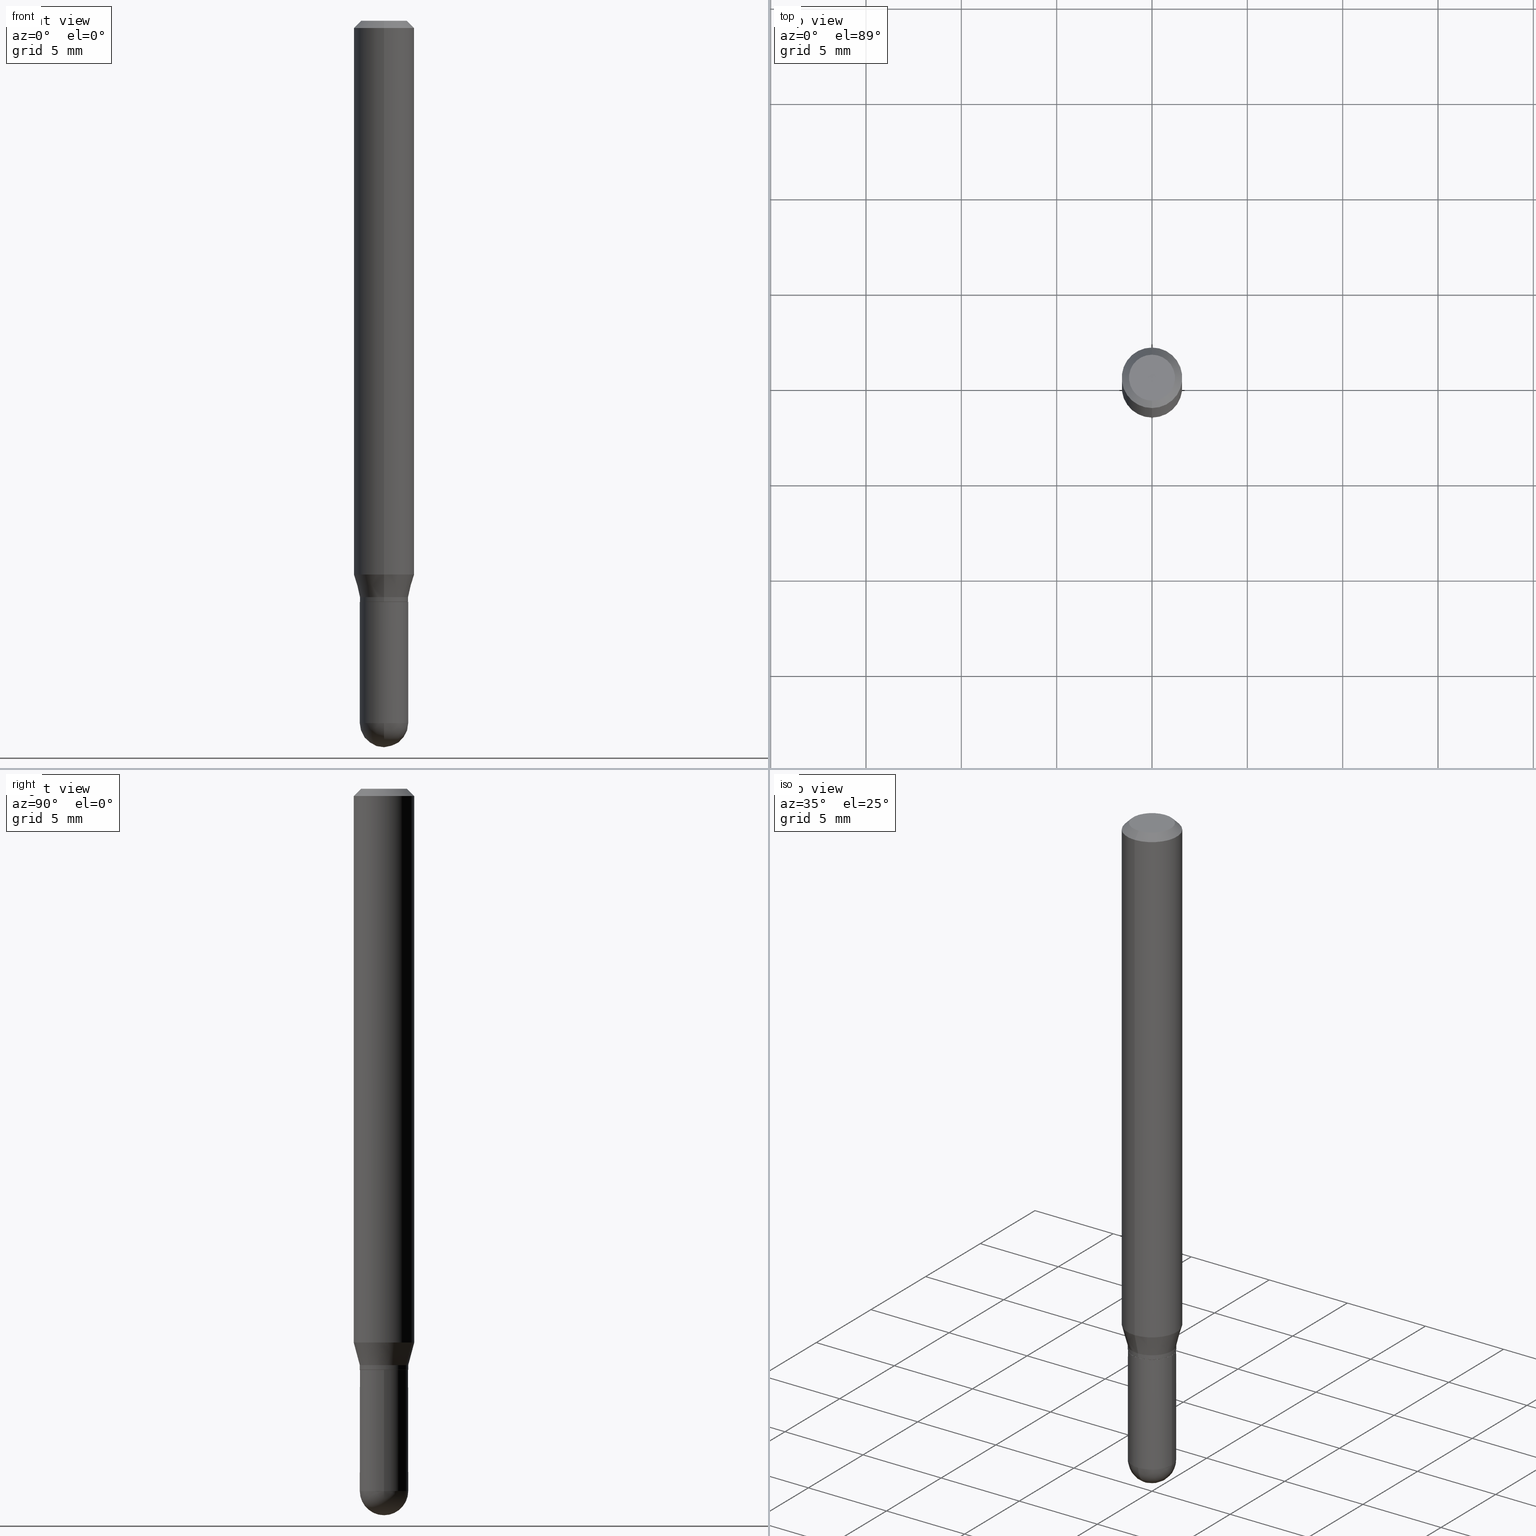
[diagram: canonical four-view strip — front | top / right | iso, engineering-drawing reading convention]
A machine part, canonical four-view strip (front | top / right | iso — engineering-drawing reading convention). The complete STEP part file that produces these views, byte-faithful:
ISO-10303-21;
HEADER;
FILE_DESCRIPTION (( 'STEP AP203' ),
    '1' );
FILE_NAME ('00876.STEP',
    '2024-03-07T18:38:46',
    ( '' ),
    ( '' ),
    'SwSTEP 2.0',
    'SolidWorks 2023',
    '' );
FILE_SCHEMA (( 'CONFIG_CONTROL_DESIGN' ));
ENDSEC;

DATA;
#1 = DIRECTION ( 'NONE',  ( -2.445468806185136597E-29, 3.491481338843145583E-15, 1.000000000000000000 ) ) ;
#2 = MANIFOLD_SOLID_BREP ( 'Body-Move/Copy2[2]', #184 ) ;
#3 = DATE_AND_TIME ( #436, #73 ) ;
#4 = DIRECTION ( 'NONE',  ( -2.445455409142924430E-29, 3.491500524170105647E-15, 1.000000000000000000 ) ) ;
#5 = AXIS2_PLACEMENT_3D ( 'NONE', #450, #388, #29 ) ;
#6 = ORIENTED_EDGE ( 'NONE', *, *, #95, .F. ) ;
#7 = LOCAL_TIME ( 13, 38, 46.00000000000000000, #8 ) ;
#8 = COORDINATED_UNIVERSAL_TIME_OFFSET ( 5, 0, .BEHIND. ) ;
#9 = DIRECTION ( 'NONE',  ( -2.445455409142924430E-29, 3.491500524170105647E-15, 1.000000000000000000 ) ) ;
#10 = DIRECTION ( 'NONE',  ( -1.807323732225328167E-15, -0.2588190451025179084, 0.9659258262890690894 ) ) ;
#11 = APPLICATION_PROTOCOL_DEFINITION ( 'international standard', 'config_control_design', 1994, #307 ) ;
#12 = CARTESIAN_POINT ( 'NONE',  ( 0.000000000000000000, 0.000000000000000000, 0.000000000000000000 ) ) ;
#13 = EDGE_CURVE ( 'NONE', #176, #294, #493, .T. ) ;
#14 = CC_DESIGN_SECURITY_CLASSIFICATION ( #244, ( #484 ) ) ;
#15 = CARTESIAN_POINT ( 'NONE',  ( 2.934546490971509876E-29, -4.189800629004127249E-15, -1.200000000000000178 ) ) ;
#16 = PRODUCT_RELATED_PRODUCT_CATEGORY ( 'detail', '', ( #122 ) ) ;
#17 = DIRECTION ( 'NONE',  ( -2.445468806185136597E-29, 3.491481338843145583E-15, 1.000000000000000000 ) ) ;
#18 = ORIENTED_EDGE ( 'NONE', *, *, #438, .F. ) ;
#19 = CARTESIAN_POINT ( 'NONE',  ( 3.552713678800795963E-16, 0.04999999999999590883, -1.190000000000000391 ) ) ;
#20 = ORIENTED_EDGE ( 'NONE', *, *, #394, .F. ) ;
#21 = DIMENSIONAL_EXPONENTS ( 1.000000000000000000, 0.000000000000000000, 0.000000000000000000, 0.000000000000000000, 0.000000000000000000, 0.000000000000000000, 0.000000000000000000 ) ;
#22 = AXIS2_PLACEMENT_3D ( 'NONE', #325, #504, #335 ) ;
#23 = CIRCLE ( 'NONE', #323, 0.05000000000000006523 ) ;
#24 = CARTESIAN_POINT ( 'NONE',  ( -3.491481338843137300E-16, -0.05000000000000006523, 1.745750262085054993E-16 ) ) ;
#25 = ORIENTED_EDGE ( 'NONE', *, *, #311, .F. ) ;
#26 = PRODUCT_DEFINITION ( 'UNKNOWN', '', #484, #265 ) ;
#27 = DIRECTION ( 'NONE',  ( -2.445455409142924430E-29, 3.491500524170105647E-15, 1.000000000000000000 ) ) ;
#28 = ORIENTED_EDGE ( 'NONE', *, *, #396, .T. ) ;
#29 = DIRECTION ( 'NONE',  ( -6.982962677686265922E-15, -1.000000000000000000, 4.370956789862821150E-15 ) ) ;
#30 = ORIENTED_EDGE ( 'NONE', *, *, #263, .F. ) ;
#31 = VECTOR ( 'NONE', #410, 39.37007874015748143 ) ;
#32 = DIRECTION ( 'NONE',  ( -1.000000000000000000, 6.982962677686265133E-15, -4.883557194083112340E-29 ) ) ;
#33 = CARTESIAN_POINT ( 'NONE',  ( -3.456566525454408447E-16, -0.04950000000000419342, -1.199999999999999956 ) ) ;
#34 = DIRECTION ( 'NONE',  ( 6.982962677686266711E-15, 1.000000000000000000, 0.000000000000000000 ) ) ;
#35 = DIRECTION ( 'NONE',  ( -7.105427357601001070E-15, -1.000000000000000000, 0.000000000000000000 ) ) ;
#36 = FACE_OUTER_BOUND ( 'NONE', #349, .T. ) ;
#37 = EDGE_CURVE ( 'NONE', #239, #284, #242, .T. ) ;
#38 = AXIS2_PLACEMENT_3D ( 'NONE', #502, #113, #469 ) ;
#39 = ORIENTED_EDGE ( 'NONE', *, *, #487, .T. ) ;
#40 = PERSON_AND_ORGANIZATION ( #258, #253 ) ;
#41 = DIRECTION ( 'NONE',  ( -6.982962677686266711E-15, -1.000000000000000000, 3.491500524170106041E-15 ) ) ;
#42 = LENGTH_MEASURE_WITH_UNIT ( LENGTH_MEASURE( 0.02539999999999999897 ), #443 );
#43 = DIRECTION ( 'NONE',  ( -1.000000000000000000, 6.982962677686265922E-15, -4.876176775795935793E-29 ) ) ;
#44 = ADVANCED_FACE ( 'NONE', ( #123 ), #120, .T. ) ;
#45 =( NAMED_UNIT ( * ) PLANE_ANGLE_UNIT ( ) SI_UNIT ( $, .RADIAN. ) );
#46 = FACE_OUTER_BOUND ( 'NONE', #220, .T. ) ;
#47 = VECTOR ( 'NONE', #350, 39.37007874015748854 ) ;
#48 = AXIS2_PLACEMENT_3D ( 'NONE', #50, #447, #247 ) ;
#49 = VECTOR ( 'NONE', #392, 39.37007874015748143 ) ;
#50 = CARTESIAN_POINT ( 'NONE',  ( 0.000000000000000000, 0.000000000000000000, 0.000000000000000000 ) ) ;
#51 = CARTESIAN_POINT ( 'NONE',  ( 3.491481338843426713E-16, 0.04999999999999581168, -1.200000000000000400 ) ) ;
#52 = PERSON_AND_ORGANIZATION ( #258, #253 ) ;
#53 = DIRECTION ( 'NONE',  ( -1.000000000000000000, 6.982962677686265133E-15, -4.883557194083112340E-29 ) ) ;
#54 = DIRECTION ( 'NONE',  ( -2.445455409142924430E-29, 3.491500524170105647E-15, 1.000000000000000000 ) ) ;
#55 = VECTOR ( 'NONE', #498, 39.37007874015748143 ) ;
#56 = APPROVAL_PERSON_ORGANIZATION ( #411, #276, #285 ) ;
#57 = LINE ( 'NONE', #19, #47 ) ;
#58 = ORIENTED_EDGE ( 'NONE', *, *, #510, .F. ) ;
#59 = ORIENTED_EDGE ( 'NONE', *, *, #146, .T. ) ;
#60 = ADVANCED_FACE ( 'NONE', ( #286 ), #437, .T. ) ;
#61 = CARTESIAN_POINT ( 'NONE',  ( 2.910091936880080548E-29, -4.154885623762426287E-15, -1.190000000000000169 ) ) ;
#62 = CC_DESIGN_PERSON_AND_ORGANIZATION_ASSIGNMENT ( #245, #399, ( #484 ) ) ;
#63 = EDGE_LOOP ( 'NONE', ( #130, #434, #6, #465 ) ) ;
#64 = AXIS2_PLACEMENT_3D ( 'NONE', #231, #472, #35 ) ;
#65 = CIRCLE ( 'NONE', #406, 0.04950000000000000233 ) ;
#66 = DIRECTION ( 'NONE',  ( -2.445455409142924430E-29, 3.491500524170105647E-15, 1.000000000000000000 ) ) ;
#67 = ORIENTED_EDGE ( 'NONE', *, *, #82, .F. ) ;
#68 = EDGE_LOOP ( 'NONE', ( #145, #236 ) ) ;
#69 = LINE ( 'NONE', #152, #446 ) ;
#70 = ORIENTED_EDGE ( 'NONE', *, *, #104, .F. ) ;
#71 = EDGE_CURVE ( 'NONE', #190, #326, #393, .T. ) ;
#72 = CIRCLE ( 'NONE', #338, 0.06250000000000000000 ) ;
#73 = LOCAL_TIME ( 13, 38, 46.00000000000000000, #160 ) ;
#74 = DIRECTION ( 'NONE',  ( -2.445468806185136877E-29, 3.491481338843145188E-15, 1.000000000000000000 ) ) ;
#75 = CLOSED_SHELL ( 'NONE', ( #195, #259, #266, #429, #378 ) ) ;
#76 = CARTESIAN_POINT ( 'NONE',  ( 2.166528792165285083E-46, -3.093262868418392808E-32, -8.859408288800502877E-18 ) ) ;
#77 = ORIENTED_EDGE ( 'NONE', *, *, #82, .T. ) ;
#78 = EDGE_CURVE ( 'NONE', #109, #176, #86, .T. ) ;
#79 = ORIENTED_EDGE ( 'NONE', *, *, #131, .F. ) ;
#80 = CARTESIAN_POINT ( 'NONE',  ( -3.491481338842846900E-16, -0.05000000000000429101, -1.199500000000000011 ) ) ;
#81 = EDGE_LOOP ( 'NONE', ( #306, #458, #121, #18 ) ) ;
#82 = EDGE_CURVE ( 'NONE', #403, #176, #353, .T. ) ;
#83 = VERTEX_POINT ( 'NONE', #33 ) ;
#84 = DATE_AND_TIME ( #250, #468 ) ;
#85 = AXIS2_PLACEMENT_3D ( 'NONE', #168, #486, #211 ) ;
#86 = LINE ( 'NONE', #463, #278 ) ;
#87 = LINE ( 'NONE', #89, #162 ) ;
#88 = PERSON_AND_ORGANIZATION_ROLE ( 'design_owner' ) ;
#89 = CARTESIAN_POINT ( 'NONE',  ( -3.491481338842845914E-16, -0.05000000000000422162, -1.189999999999999947 ) ) ;
#90 = DIRECTION ( 'NONE',  ( -2.445455409142924430E-29, 3.491500524170105647E-15, 1.000000000000000000 ) ) ;
#91 = VECTOR ( 'NONE', #180, 39.37007874015748143 ) ;
#92 = EDGE_CURVE ( 'NONE', #451, #284, #308, .T. ) ;
#93 = CARTESIAN_POINT ( 'NONE',  ( 3.541653937522551347E-29, -5.068771175318297793E-15, -1.450000000000000178 ) ) ;
#94 = DIRECTION ( 'NONE',  ( -2.445455409142924430E-29, 3.491500524170105647E-15, 1.000000000000000000 ) ) ;
#95 = EDGE_CURVE ( 'NONE', #422, #186, #302, .T. ) ;
#96 = SPHERICAL_SURFACE ( 'NONE', #164, 0.05000000000000000971 ) ;
#97 = CIRCLE ( 'NONE', #390, 0.04999999999999999584 ) ;
#98 = ORIENTED_EDGE ( 'NONE', *, *, #13, .F. ) ;
#99 = AXIS2_PLACEMENT_3D ( 'NONE', #222, #452, #261 ) ;
#100 = CALENDAR_DATE ( 2024, 7, 3 ) ;
#101 = CARTESIAN_POINT ( 'NONE',  ( -3.456566525454408447E-16, -0.04950000000000419342, -1.199999999999999956 ) ) ;
#102 = ORIENTED_EDGE ( 'NONE', *, *, #396, .F. ) ;
#103 = ADVANCED_FACE ( 'NONE', ( #357 ), #381, .T. ) ;
#104 = EDGE_CURVE ( 'NONE', #386, #109, #407, .T. ) ;
#105 = DIRECTION ( 'NONE',  ( -6.982962677686265133E-15, -1.000000000000000000, 2.731847993664259669E-15 ) ) ;
#106 = ORIENTED_EDGE ( 'NONE', *, *, #214, .T. ) ;
#107 = PERSON_AND_ORGANIZATION ( #258, #253 ) ;
#108 = FACE_OUTER_BOUND ( 'NONE', #369, .T. ) ;
#109 = VERTEX_POINT ( 'NONE', #467 ) ;
#110 = CONICAL_SURFACE ( 'NONE', #483, 0.06250000000000000000, 0.7853981633974483900 ) ;
#111 = PLANE ( 'NONE',  #225 ) ;
#112 = ORIENTED_EDGE ( 'NONE', *, *, #352, .T. ) ;
#113 = DIRECTION ( 'NONE',  ( -2.445455409142924430E-29, 3.491500524170105647E-15, 1.000000000000000000 ) ) ;
#114 = DIRECTION ( 'NONE',  ( 4.937700262164548042E-15, 0.7071067811865451302, -0.7071067811865499042 ) ) ;
#115 = DIRECTION ( 'NONE',  ( -2.445455409142924430E-29, 3.491500524170106041E-15, 1.000000000000000000 ) ) ;
#116 = APPROVAL_PERSON_ORGANIZATION ( #128, #312, #441 ) ;
#117 = VECTOR ( 'NONE', #115, 39.37007874015748143 ) ;
#118 = ORIENTED_EDGE ( 'NONE', *, *, #333, .T. ) ;
#119 = ADVANCED_FACE ( 'NONE', ( #36 ), #509, .T. ) ;
#120 = CYLINDRICAL_SURFACE ( 'NONE', #466, 0.05000000000000006523 ) ;
#121 = ORIENTED_EDGE ( 'NONE', *, *, #131, .T. ) ;
#122 = PRODUCT ( '00876', '00876', '', ( #206 ) ) ;
#123 = FACE_OUTER_BOUND ( 'NONE', #389, .T. ) ;
#124 = DIRECTION ( 'NONE',  ( -2.445468806185136597E-29, 3.491481338843145583E-15, 1.000000000000000000 ) ) ;
#125 = FACE_OUTER_BOUND ( 'NONE', #384, .T. ) ;
#126 =( CONVERSION_BASED_UNIT ( 'INCH', #42 ) LENGTH_UNIT ( ) NAMED_UNIT ( #21 ) );
#127 = DIRECTION ( 'NONE',  ( -6.982962677686265922E-15, -1.000000000000000000, 3.483106191921935554E-15 ) ) ;
#128 = PERSON_AND_ORGANIZATION ( #258, #253 ) ;
#129 = CARTESIAN_POINT ( 'NONE',  ( -0.04999999999999999584, 3.552713678800500634E-16, -2.459467545127452961E-30 ) ) ;
#130 = ORIENTED_EDGE ( 'NONE', *, *, #37, .F. ) ;
#131 = EDGE_CURVE ( 'NONE', #495, #273, #87, .T. ) ;
#132 = CARTESIAN_POINT ( 'NONE',  ( 3.668183113714388746E-31, -5.237250786255162143E-17, -0.01500000000000000812 ) ) ;
#133 = CONICAL_SURFACE ( 'NONE', #38, 0.04950000000000000233, 0.7853981633974739252 ) ;
#134 = APPROVAL_PERSON_ORGANIZATION ( #107, #418, #221 ) ;
#135 = CC_DESIGN_DATE_AND_TIME_ASSIGNMENT ( #327, #372, ( #26 ) ) ;
#136 = DIRECTION ( 'NONE',  ( -6.982962677686265922E-15, -1.000000000000000000, 3.491500524170105647E-15 ) ) ;
#137 = COORDINATED_UNIVERSAL_TIME_OFFSET ( 5, 0, .BEHIND. ) ;
#138 = CARTESIAN_POINT ( 'NONE',  ( -3.773273898774340269E-16, -0.04749999999999999362, 1.569868666092795110E-16 ) ) ;
#139 = ORIENTED_EDGE ( 'NONE', *, *, #371, .F. ) ;
#140 = ORIENTED_EDGE ( 'NONE', *, *, #371, .T. ) ;
#141 = AXIS2_PLACEMENT_3D ( 'NONE', #51, #337, #43 ) ;
#142 = DIRECTION ( 'NONE',  ( -6.982962677686265133E-15, -1.000000000000000000, 2.731847993664259669E-15 ) ) ;
#143 = EDGE_LOOP ( 'NONE', ( #139, #106, #362, #25 ) ) ;
#144 = CARTESIAN_POINT ( 'NONE',  ( 3.517186542012788950E-16, 0.04949999999999581124, -1.200000000000000400 ) ) ;
#145 = ORIENTED_EDGE ( 'NONE', *, *, #471, .T. ) ;
#146 = EDGE_CURVE ( 'NONE', #284, #422, #97, .T. ) ;
#147 = CARTESIAN_POINT ( 'NONE',  ( 4.440892098500904235E-16, 0.06249999999999599626, -1.143349364905389853 ) ) ;
#148 = ORIENTED_EDGE ( 'NONE', *, *, #240, .T. ) ;
#149 = CC_DESIGN_APPROVAL ( #418, ( #244 ) ) ;
#150 = LOCAL_TIME ( 13, 38, 46.00000000000000000, #137 ) ;
#151 = ORIENTED_EDGE ( 'NONE', *, *, #78, .T. ) ;
#152 = CARTESIAN_POINT ( 'NONE',  ( 0.04999999999999999584, -3.491481338843132862E-16, 2.438088387897967896E-30 ) ) ;
#153 = CARTESIAN_POINT ( 'NONE',  ( 0.000000000000000000, 0.000000000000000000, 0.000000000000000000 ) ) ;
#154 = ORIENTED_EDGE ( 'NONE', *, *, #387, .F. ) ;
#155 = CC_DESIGN_PERSON_AND_ORGANIZATION_ASSIGNMENT ( #52, #364, ( #26 ) ) ;
#156 = CONICAL_SURFACE ( 'NONE', #295, 0.05000000000000006523, 0.2617993877991499629 ) ;
#157 = ORIENTED_EDGE ( 'NONE', *, *, #487, .F. ) ;
#158 = DIRECTION ( 'NONE',  ( 6.982962677686265922E-15, 1.000000000000000000, -3.483106191921935554E-15 ) ) ;
#159 = DIRECTION ( 'NONE',  ( -6.982962677686265922E-15, -1.000000000000000000, 3.483106191921935554E-15 ) ) ;
#160 = COORDINATED_UNIVERSAL_TIME_OFFSET ( 5, 0, .BEHIND. ) ;
#161 = DIRECTION ( 'NONE',  ( 6.982962677686265133E-15, 1.000000000000000000, -5.463695987328524859E-15 ) ) ;
#162 = VECTOR ( 'NONE', #10, 39.37007874015748143 ) ;
#163 = APPROVAL_DATE_TIME ( #84, #312 ) ;
#164 = AXIS2_PLACEMENT_3D ( 'NONE', #229, #32, #192 ) ;
#165 = DIRECTION ( 'NONE',  ( -6.982962677686265922E-15, -1.000000000000000000, 4.370956789862821150E-15 ) ) ;
#166 = EDGE_LOOP ( 'NONE', ( #287, #341 ) ) ;
#167 = CALENDAR_DATE ( 2024, 7, 3 ) ;
#168 = CARTESIAN_POINT ( 'NONE',  ( 3.316907271900976096E-16, 0.04749999999999999362, -1.702759790424802506E-16 ) ) ;
#169 = CALENDAR_DATE ( 2024, 7, 3 ) ;
#170 = CARTESIAN_POINT ( 'NONE',  ( 3.668183113714388746E-31, -5.237250786255162143E-17, -0.01500000000000000812 ) ) ;
#171 = APPROVAL_STATUS ( 'not_yet_approved' ) ;
#172 = AXIS2_PLACEMENT_3D ( 'NONE', #503, #512, #159 ) ;
#173 = DIRECTION ( 'NONE',  ( 1.000000000000000000, -6.982962677686274599E-15, 0.000000000000000000 ) ) ;
#174 = AXIS2_PLACEMENT_3D ( 'NONE', #12, #90, #136 ) ;
#175 = CARTESIAN_POINT ( 'NONE',  ( 0.04999999999999999584, -4.975360907851482386E-15, -1.450000000000000178 ) ) ;
#176 = VERTEX_POINT ( 'NONE', #299 ) ;
#177 = DATE_AND_TIME ( #100, #150 ) ;
#178 = DIRECTION ( 'NONE',  ( 1.000000000000000000, -6.982962677686265922E-15, 4.876176775795936353E-29 ) ) ;
#179 = ORIENTED_EDGE ( 'NONE', *, *, #333, .F. ) ;
#180 = DIRECTION ( 'NONE',  ( -2.445455409142924430E-29, 3.491500524170106041E-15, 1.000000000000000000 ) ) ;
#181 = EDGE_LOOP ( 'NONE', ( #30, #249, #151, #301 ) ) ;
#182 = CIRCLE ( 'NONE', #374, 0.05000000000000000971 ) ;
#183 = AXIS2_PLACEMENT_3D ( 'NONE', #476, #124, #485 ) ;
#184 = CLOSED_SHELL ( 'NONE', ( #44, #456, #292, #235, #491, #409, #60, #505, #203, #363, #103, #119 ) ) ;
#185 = CARTESIAN_POINT ( 'NONE',  ( -4.364351673553916201E-16, -0.06250000000000000000, 2.182187827606316029E-16 ) ) ;
#186 = VERTEX_POINT ( 'NONE', #293 ) ;
#187 = EDGE_CURVE ( 'NONE', #227, #310, #482, .T. ) ;
#188 = DIRECTION ( 'NONE',  ( -6.982962677686265133E-15, -1.000000000000000000, 2.731847993664259669E-15 ) ) ;
#189 = ORIENTED_EDGE ( 'NONE', *, *, #37, .T. ) ;
#190 = VERTEX_POINT ( 'NONE', #412 ) ;
#191 = VECTOR ( 'NONE', #339, 39.37007874015748143 ) ;
#192 = DIRECTION ( 'NONE',  ( 6.982962677686265133E-15, 1.000000000000000000, -5.463695987328524859E-15 ) ) ;
#193 = DIRECTION ( 'NONE',  ( -2.445468806185136597E-29, 3.491481338843145583E-15, 1.000000000000000000 ) ) ;
#194 = FACE_OUTER_BOUND ( 'NONE', #181, .T. ) ;
#195 = ADVANCED_FACE ( 'NONE', ( #46 ), #370, .T. ) ;
#196 = DIRECTION ( 'NONE',  ( 1.000000000000000000, -6.982962677686275388E-15, 0.000000000000000000 ) ) ;
#197 = CC_DESIGN_PERSON_AND_ORGANIZATION_ASSIGNMENT ( #404, #209, ( #484 ) ) ;
#198 = CARTESIAN_POINT ( 'NONE',  ( 3.545929768968448850E-29, -5.062647941322561509E-15, -1.450000000000000178 ) ) ;
#199 = AXIS2_PLACEMENT_3D ( 'NONE', #234, #201, #511 ) ;
#200 = CC_DESIGN_APPROVAL ( #312, ( #484 ) ) ;
#201 = DIRECTION ( 'NONE',  ( -2.445455409142924430E-29, 3.491500524170105647E-15, 1.000000000000000000 ) ) ;
#202 = ORIENTED_EDGE ( 'NONE', *, *, #223, .F. ) ;
#203 = ADVANCED_FACE ( 'NONE', ( #332 ), #208, .F. ) ;
#204 = PERSON_AND_ORGANIZATION_ROLE ( 'classification_officer' ) ;
#205 = DIRECTION ( 'NONE',  ( 1.000000000000000000, -6.982962677686265922E-15, 4.876176775795936353E-29 ) ) ;
#206 = MECHANICAL_CONTEXT ( 'NONE', #307, 'mechanical' ) ;
#207 = CC_DESIGN_PERSON_AND_ORGANIZATION_ASSIGNMENT ( #255, #88, ( #122 ) ) ;
#208 = PLANE ( 'NONE',  #85 ) ;
#209 = PERSON_AND_ORGANIZATION_ROLE ( 'design_supplier' ) ;
#210 = AXIS2_PLACEMENT_3D ( 'NONE', #170, #94, #127 ) ;
#211 = DIRECTION ( 'NONE',  ( 6.982962677686265922E-15, 1.000000000000000000, -3.491500524170106041E-15 ) ) ;
#212 = APPROVAL_DATE_TIME ( #3, #276 ) ;
#213 = DIRECTION ( 'NONE',  ( -2.445468806185136597E-29, 3.491481338843145583E-15, 1.000000000000000000 ) ) ;
#214 = EDGE_CURVE ( 'NONE', #314, #83, #243, .T. ) ;
#215 = CC_DESIGN_PERSON_AND_ORGANIZATION_ASSIGNMENT ( #40, #204, ( #244 ) ) ;
#216 = CARTESIAN_POINT ( 'NONE',  ( 2.796009888948012250E-29, -3.992004906876724635E-15, -1.143349364905389409 ) ) ;
#217 = DIRECTION ( 'NONE',  ( -6.982962677686265922E-15, -1.000000000000000000, 2.759442417842689940E-15 ) ) ;
#218 =( GEOMETRIC_REPRESENTATION_CONTEXT ( 3 ) GLOBAL_UNCERTAINTY_ASSIGNED_CONTEXT ( ( #380 ) ) GLOBAL_UNIT_ASSIGNED_CONTEXT ( ( #126, #45, #408 ) ) REPRESENTATION_CONTEXT ( 'NONE', 'WORKASPACE' ) );
#219 = DIRECTION ( 'NONE',  ( -6.982962677686265922E-15, -1.000000000000000000, 3.491500524170106041E-15 ) ) ;
#220 = EDGE_LOOP ( 'NONE', ( #291, #427, #283, #157, #461 ) ) ;
#221 = APPROVAL_ROLE ( '' ) ;
#222 = CARTESIAN_POINT ( 'NONE',  ( 2.910091936880080548E-29, -4.154885623762426287E-15, -1.190000000000000169 ) ) ;
#223 = EDGE_CURVE ( 'NONE', #451, #310, #442, .T. ) ;
#224 = ORIENTED_EDGE ( 'NONE', *, *, #263, .T. ) ;
#225 = AXIS2_PLACEMENT_3D ( 'NONE', #15, #494, #219 ) ;
#226 = CARTESIAN_POINT ( 'NONE',  ( 2.933323763266938746E-29, -4.188054878742041965E-15, -1.199500000000000233 ) ) ;
#227 = VERTEX_POINT ( 'NONE', #257 ) ;
#228 = EDGE_CURVE ( 'NONE', #273, #403, #72, .T. ) ;
#229 = CARTESIAN_POINT ( 'NONE',  ( 3.541653937522551347E-29, -5.068771175318297793E-15, -1.450000000000000178 ) ) ;
#230 = ORIENTED_EDGE ( 'NONE', *, *, #233, .F. ) ;
#231 = CARTESIAN_POINT ( 'NONE',  ( 3.541653937522551347E-29, -5.068771175318297793E-15, -1.450000000000000178 ) ) ;
#232 = AXIS2_PLACEMENT_3D ( 'NONE', #376, #17, #178 ) ;
#233 = EDGE_CURVE ( 'NONE', #310, #227, #414, .T. ) ;
#234 = CARTESIAN_POINT ( 'NONE',  ( 2.910091936880080548E-29, -4.154885623762426287E-15, -1.190000000000000169 ) ) ;
#235 = ADVANCED_FACE ( 'NONE', ( #125 ), #373, .T. ) ;
#236 = ORIENTED_EDGE ( 'NONE', *, *, #104, .T. ) ;
#237 = CARTESIAN_POINT ( 'NONE',  ( 0.000000000000000000, 0.000000000000000000, 0.000000000000000000 ) ) ;
#238 = CARTESIAN_POINT ( 'NONE',  ( 2.166528792165285083E-46, -3.093262868418392808E-32, -8.859408288800502877E-18 ) ) ;
#239 = VERTEX_POINT ( 'NONE', #449 ) ;
#240 = EDGE_CURVE ( 'NONE', #294, #176, #500, .T. ) ;
#241 = ORIENTED_EDGE ( 'NONE', *, *, #92, .F. ) ;
#242 = CIRCLE ( 'NONE', #64, 0.05000000000000000971 ) ;
#243 = CIRCLE ( 'NONE', #391, 0.04950000000000000233 ) ;
#244 = SECURITY_CLASSIFICATION ( '', '', #367 ) ;
#245 = PERSON_AND_ORGANIZATION ( #258, #253 ) ;
#246 = DIRECTION ( 'NONE',  ( -2.445468806185136597E-29, 3.491481338843145583E-15, 1.000000000000000000 ) ) ;
#247 = DIRECTION ( 'NONE',  ( 1.000000000000000000, 0.000000000000000000, 0.000000000000000000 ) ) ;
#248 = PLANE ( 'NONE',  #141 ) ;
#249 = ORIENTED_EDGE ( 'NONE', *, *, #471, .F. ) ;
#250 = CALENDAR_DATE ( 2024, 7, 3 ) ;
#251 = CARTESIAN_POINT ( 'NONE',  ( 3.545929768968448850E-29, -5.062647941322561509E-15, -1.450000000000000178 ) ) ;
#252 = AXIS2_PLACEMENT_3D ( 'NONE', #405, #328, #205 ) ;
#253 = ORGANIZATION ( 'UNSPECIFIED', 'UNSPECIFIED', '' ) ;
#254 = CARTESIAN_POINT ( 'NONE',  ( 2.934562567422164701E-29, -4.189777606611775804E-15, -1.200000000000000178 ) ) ;
#255 = PERSON_AND_ORGANIZATION ( #258, #253 ) ;
#256 = DIRECTION ( 'NONE',  ( -2.445468806185136597E-29, 3.491481338843145583E-15, 1.000000000000000000 ) ) ;
#257 = CARTESIAN_POINT ( 'NONE',  ( 0.05000000000000000278, -4.538925740496089139E-15, -1.200000000000000178 ) ) ;
#258 = PERSON ( 'UNSPECIFIED', 'UNSPECIFIED', 'UNSPECIFIED', ('UNSPECIFIED'), ('UNSPECIFIED'), ('UNSPECIFIED') ) ;
#259 = ADVANCED_FACE ( 'NONE', ( #413 ), #444, .T. ) ;
#260 = CIRCLE ( 'NONE', #271, 0.05000000000000006523 ) ;
#261 = DIRECTION ( 'NONE',  ( -6.982962677686265133E-15, -1.000000000000000000, 2.731847993664259669E-15 ) ) ;
#262 = EDGE_LOOP ( 'NONE', ( #453, #140, #377, #20 ) ) ;
#263 = EDGE_CURVE ( 'NONE', #386, #294, #474, .T. ) ;
#264 = ORIENTED_EDGE ( 'NONE', *, *, #71, .F. ) ;
#265 = DESIGN_CONTEXT ( 'detailed design', #297, 'design' ) ;
#266 = ADVANCED_FACE ( 'NONE', ( #440 ), #248, .F. ) ;
#267 = CARTESIAN_POINT ( 'NONE',  ( 2.933323763266938746E-29, -4.188054878742041965E-15, -1.199500000000000233 ) ) ;
#268 = EDGE_LOOP ( 'NONE', ( #67, #455, #118, #98 ) ) ;
#269 = APPROVAL_STATUS ( 'not_yet_approved' ) ;
#270 = DIRECTION ( 'NONE',  ( -2.445455409142924430E-29, 3.491500524170106041E-15, 1.000000000000000000 ) ) ;
#271 = AXIS2_PLACEMENT_3D ( 'NONE', #267, #457, #188 ) ;
#272 = CARTESIAN_POINT ( 'NONE',  ( 2.910091936880080548E-29, -4.154885623762426287E-15, -1.190000000000000169 ) ) ;
#273 = VERTEX_POINT ( 'NONE', #365 ) ;
#274 = DIRECTION ( 'NONE',  ( -2.445455409142924430E-29, 3.491500524170105647E-15, 1.000000000000000000 ) ) ;
#275 = CARTESIAN_POINT ( 'NONE',  ( 4.440892098500625669E-16, 0.06250000000000000000, -2.182187827606316029E-16 ) ) ;
#276 = APPROVAL ( #331, 'UNSPECIFIED' ) ;
#277 = DIRECTION ( 'NONE',  ( -6.982962677686265922E-15, -1.000000000000000000, 2.759442417842689940E-15 ) ) ;
#278 = VECTOR ( 'NONE', #114, 39.37007874015748143 ) ;
#279 = CIRCLE ( 'NONE', #5, 0.06250000000000000000 ) ;
#280 = AXIS2_PLACEMENT_3D ( 'NONE', #153, #322, #395 ) ;
#281 = ORIENTED_EDGE ( 'NONE', *, *, #78, .F. ) ;
#282 = DIRECTION ( 'NONE',  ( 1.000000000000000000, -6.982962677686265922E-15, 4.883557194083112340E-29 ) ) ;
#283 = ORIENTED_EDGE ( 'NONE', *, *, #187, .F. ) ;
#284 = VERTEX_POINT ( 'NONE', #290 ) ;
#285 = APPROVAL_ROLE ( '' ) ;
#286 = FACE_OUTER_BOUND ( 'NONE', #268, .T. ) ;
#287 = ORIENTED_EDGE ( 'NONE', *, *, #187, .T. ) ;
#288 = CIRCLE ( 'NONE', #382, 0.05000000000000006523 ) ;
#289 = CARTESIAN_POINT ( 'NONE',  ( -4.287811248607203282E-16, -0.06250000000000005551, -0.01499999999999979128 ) ) ;
#290 = CARTESIAN_POINT ( 'NONE',  ( -3.552713678800146632E-16, -0.05000000000000506817, -1.449999999999999734 ) ) ;
#291 = ORIENTED_EDGE ( 'NONE', *, *, #510, .T. ) ;
#292 = ADVANCED_FACE ( 'NONE', ( #481 ), #110, .T. ) ;
#293 = CARTESIAN_POINT ( 'NONE',  ( 3.491481338843487850E-16, 0.04999999999999494432, -1.450000000000000400 ) ) ;
#294 = VERTEX_POINT ( 'NONE', #415 ) ;
#295 = AXIS2_PLACEMENT_3D ( 'NONE', #272, #344, #142 ) ;
#296 = DIRECTION ( 'NONE',  ( 2.445455409142924430E-29, -3.491500524170105647E-15, -1.000000000000000000 ) ) ;
#297 = APPLICATION_CONTEXT ( 'configuration controlled 3d designs of mechanical parts and assemblies' ) ;
#298 = EDGE_CURVE ( 'NONE', #326, #495, #23, .T. ) ;
#299 = CARTESIAN_POINT ( 'NONE',  ( 4.440892098500907193E-16, 0.06249999999999995143, -0.01500000000000022669 ) ) ;
#300 = FACE_OUTER_BOUND ( 'NONE', #499, .T. ) ;
#301 = ORIENTED_EDGE ( 'NONE', *, *, #13, .T. ) ;
#302 = CIRCLE ( 'NONE', #492, 0.04999999999999999584 ) ;
#303 = ADVANCED_BREP_SHAPE_REPRESENTATION ( '00876', ( #347, #2, #48 ), #218 ) ;
#304 = AXIS2_PLACEMENT_3D ( 'NONE', #254, #213, #173 ) ;
#305 = AXIS2_PLACEMENT_3D ( 'NONE', #356, #506, #158 ) ;
#306 = ORIENTED_EDGE ( 'NONE', *, *, #334, .F. ) ;
#307 = APPLICATION_CONTEXT ( 'configuration controlled 3d designs of mechanical parts and assemblies' ) ;
#308 = CIRCLE ( 'NONE', #445, 0.04999999999999999584 ) ;
#309 = CARTESIAN_POINT ( 'NONE',  ( 2.934546490971509876E-29, -4.189800629004127249E-15, -1.200000000000000178 ) ) ;
#310 = VERTEX_POINT ( 'NONE', #454 ) ;
#311 = EDGE_CURVE ( 'NONE', #190, #490, #260, .T. ) ;
#312 = APPROVAL ( #171, 'UNSPECIFIED' ) ;
#313 = DIRECTION ( 'NONE',  ( 6.982962677686265922E-15, 1.000000000000000000, -3.483106191921935554E-15 ) ) ;
#314 = VERTEX_POINT ( 'NONE', #460 ) ;
#315 = FACE_OUTER_BOUND ( 'NONE', #81, .T. ) ;
#316 = VECTOR ( 'NONE', #426, 39.37007874015748143 ) ;
#317 = ORIENTED_EDGE ( 'NONE', *, *, #92, .T. ) ;
#318 = VECTOR ( 'NONE', #270, 39.37007874015748143 ) ;
#319 = CARTESIAN_POINT ( 'NONE',  ( 3.552713678800505071E-16, 0.05000000000000006523, -1.745750262085054993E-16 ) ) ;
#320 = FACE_OUTER_BOUND ( 'NONE', #431, .T. ) ;
#321 = ORIENTED_EDGE ( 'NONE', *, *, #214, .F. ) ;
#322 = DIRECTION ( 'NONE',  ( -2.445455409142924430E-29, 3.491500524170105647E-15, 1.000000000000000000 ) ) ;
#323 = AXIS2_PLACEMENT_3D ( 'NONE', #61, #27, #375 ) ;
#324 = CARTESIAN_POINT ( 'NONE',  ( -0.04999999999999999584, -4.270941406087117853E-15, -1.450000000000000178 ) ) ;
#325 = CARTESIAN_POINT ( 'NONE',  ( 0.000000000000000000, 0.000000000000000000, 0.000000000000000000 ) ) ;
#326 = VERTEX_POINT ( 'NONE', #421 ) ;
#327 = DATE_AND_TIME ( #169, #330 ) ;
#328 = DIRECTION ( 'NONE',  ( -2.445468806185136597E-29, 3.491481338843145583E-15, 1.000000000000000000 ) ) ;
#329 = AXIS2_PLACEMENT_3D ( 'NONE', #93, #53, #161 ) ;
#330 = LOCAL_TIME ( 13, 38, 46.00000000000000000, #478 ) ;
#331 = APPROVAL_STATUS ( 'not_yet_approved' ) ;
#332 = FACE_OUTER_BOUND ( 'NONE', #68, .T. ) ;
#333 = EDGE_CURVE ( 'NONE', #273, #294, #348, .T. ) ;
#334 = EDGE_CURVE ( 'NONE', #326, #403, #57, .T. ) ;
#335 = DIRECTION ( 'NONE',  ( -6.982962677686265133E-15, -1.000000000000000000, 3.491500524170105252E-15 ) ) ;
#336 = COORDINATED_UNIVERSAL_TIME_OFFSET ( 5, 0, .BEHIND. ) ;
#337 = DIRECTION ( 'NONE',  ( 2.438088387897960049E-29, -3.491481338843145188E-15, -1.000000000000000000 ) ) ;
#338 = AXIS2_PLACEMENT_3D ( 'NONE', #216, #4, #165 ) ;
#339 = DIRECTION ( 'NONE',  ( -2.445468806185136877E-29, 3.491481338843145188E-15, 1.000000000000000000 ) ) ;
#340 = FACE_OUTER_BOUND ( 'NONE', #63, .T. ) ;
#341 = ORIENTED_EDGE ( 'NONE', *, *, #233, .T. ) ;
#342 = ORIENTED_EDGE ( 'NONE', *, *, #387, .T. ) ;
#343 = AXIS2_PLACEMENT_3D ( 'NONE', #238, #274, #430 ) ;
#344 = DIRECTION ( 'NONE',  ( -2.445455409142924430E-29, 3.491500524170105647E-15, 1.000000000000000000 ) ) ;
#345 = ORIENTED_EDGE ( 'NONE', *, *, #228, .F. ) ;
#346 = AXIS2_PLACEMENT_3D ( 'NONE', #358, #433, #277 ) ;
#347 = MANIFOLD_SOLID_BREP ( 'Body-Move/Copy2[1]', #75 ) ;
#348 = LINE ( 'NONE', #185, #318 ) ;
#349 = EDGE_LOOP ( 'NONE', ( #264, #428, #28, #488 ) ) ;
#350 = DIRECTION ( 'NONE',  ( 1.839019923739597949E-15, 0.2588190451025246253, 0.9659258262890670910 ) ) ;
#351 = ORIENTED_EDGE ( 'NONE', *, *, #228, .T. ) ;
#352 = EDGE_CURVE ( 'NONE', #490, #190, #288, .T. ) ;
#353 = LINE ( 'NONE', #275, #117 ) ;
#354 = CARTESIAN_POINT ( 'NONE',  ( 3.541653937522551347E-29, -5.068771175318297793E-15, -1.450000000000000178 ) ) ;
#355 = CARTESIAN_POINT ( 'NONE',  ( 3.545929768968448850E-29, -5.062647941322561509E-15, -1.450000000000000178 ) ) ;
#356 = CARTESIAN_POINT ( 'NONE',  ( 3.668183113714388746E-31, -5.237250786255162143E-17, -0.01500000000000000812 ) ) ;
#357 = FACE_OUTER_BOUND ( 'NONE', #143, .T. ) ;
#358 = CARTESIAN_POINT ( 'NONE',  ( 2.934546490971509876E-29, -4.189800629004127249E-15, -1.200000000000000178 ) ) ;
#359 = PRODUCT_DEFINITION_SHAPE ( 'NONE', 'NONE',  #26 ) ;
#360 = EDGE_LOOP ( 'NONE', ( #379, #189, #241, #58 ) ) ;
#361 = DATE_AND_TIME ( #167, #7 ) ;
#362 = ORIENTED_EDGE ( 'NONE', *, *, #394, .T. ) ;
#363 = ADVANCED_FACE ( 'NONE', ( #108 ), #111, .F. ) ;
#364 = PERSON_AND_ORGANIZATION_ROLE ( 'creator' ) ;
#365 = CARTESIAN_POINT ( 'NONE',  ( -4.364351673553637142E-16, -0.06250000000000399680, -1.143349364905389187 ) ) ;
#366 = AXIS2_PLACEMENT_3D ( 'NONE', #477, #256, #402 ) ;
#367 = SECURITY_CLASSIFICATION_LEVEL ( 'unclassified' ) ;
#368 = CARTESIAN_POINT ( 'NONE',  ( 2.934546490971509876E-29, -4.189800629004127249E-15, -1.200000000000000178 ) ) ;
#369 = EDGE_LOOP ( 'NONE', ( #420, #321 ) ) ;
#370 = CYLINDRICAL_SURFACE ( 'NONE', #252, 0.04999999999999999584 ) ;
#371 = EDGE_CURVE ( 'NONE', #314, #190, #496, .T. ) ;
#372 = DATE_TIME_ROLE ( 'creation_date' ) ;
#373 = CYLINDRICAL_SURFACE ( 'NONE', #174, 0.06250000000000000000 ) ;
#374 = AXIS2_PLACEMENT_3D ( 'NONE', #354, #282, #34 ) ;
#375 = DIRECTION ( 'NONE',  ( -6.982962677686265133E-15, -1.000000000000000000, 2.731847993664259669E-15 ) ) ;
#376 = CARTESIAN_POINT ( 'NONE',  ( 0.000000000000000000, 0.000000000000000000, 0.000000000000000000 ) ) ;
#377 = ORIENTED_EDGE ( 'NONE', *, *, #352, .F. ) ;
#378 = ADVANCED_FACE ( 'NONE', ( #300 ), #385, .T. ) ;
#379 = ORIENTED_EDGE ( 'NONE', *, *, #480, .F. ) ;
#380 = UNCERTAINTY_MEASURE_WITH_UNIT (LENGTH_MEASURE( 1.000000000000000082E-05 ), #126, 'distance_accuracy_value', 'NONE');
#381 = CONICAL_SURFACE ( 'NONE', #346, 0.04950000000000000233, 0.7853981633974739252 ) ;
#382 = AXIS2_PLACEMENT_3D ( 'NONE', #226, #66, #105 ) ;
#383 = LINE ( 'NONE', #101, #55 ) ;
#384 = EDGE_LOOP ( 'NONE', ( #351, #77, #470, #179 ) ) ;
#385 = CYLINDRICAL_SURFACE ( 'NONE', #232, 0.04999999999999999584 ) ;
#386 = VERTEX_POINT ( 'NONE', #138 ) ;
#387 = EDGE_CURVE ( 'NONE', #495, #326, #508, .T. ) ;
#388 = DIRECTION ( 'NONE',  ( -2.445455409142924430E-29, 3.491500524170105647E-15, 1.000000000000000000 ) ) ;
#389 = EDGE_LOOP ( 'NONE', ( #112, #497, #154, #102 ) ) ;
#390 = AXIS2_PLACEMENT_3D ( 'NONE', #251, #1, #448 ) ;
#391 = AXIS2_PLACEMENT_3D ( 'NONE', #368, #9, #479 ) ;
#392 = DIRECTION ( 'NONE',  ( -2.445455409142924430E-29, 3.491500524170106041E-15, 1.000000000000000000 ) ) ;
#393 = LINE ( 'NONE', #319, #49 ) ;
#394 = EDGE_CURVE ( 'NONE', #83, #490, #383, .T. ) ;
#395 = DIRECTION ( 'NONE',  ( -6.982962677686265922E-15, -1.000000000000000000, 3.491500524170105647E-15 ) ) ;
#396 = EDGE_CURVE ( 'NONE', #490, #495, #419, .T. ) ;
#397 = DIRECTION ( 'NONE',  ( -6.982962677686265133E-15, -1.000000000000000000, 3.491500524170105252E-15 ) ) ;
#398 = EDGE_LOOP ( 'NONE', ( #70, #224, #148, #281 ) ) ;
#399 = PERSON_AND_ORGANIZATION_ROLE ( 'creator' ) ;
#400 = DIRECTION ( 'NONE',  ( 1.000000000000000000, -6.982962677686275388E-15, 0.000000000000000000 ) ) ;
#401 = APPLICATION_PROTOCOL_DEFINITION ( 'international standard', 'config_control_design', 1994, #297 ) ;
#402 = DIRECTION ( 'NONE',  ( 1.000000000000000000, -6.982962677686274599E-15, 0.000000000000000000 ) ) ;
#403 = VERTEX_POINT ( 'NONE', #147 ) ;
#404 = PERSON_AND_ORGANIZATION ( #258, #253 ) ;
#405 = CARTESIAN_POINT ( 'NONE',  ( 0.000000000000000000, 0.000000000000000000, 0.000000000000000000 ) ) ;
#406 = AXIS2_PLACEMENT_3D ( 'NONE', #309, #54, #217 ) ;
#407 = CIRCLE ( 'NONE', #424, 0.04749999999999999362 ) ;
#408 =( NAMED_UNIT ( * ) SI_UNIT ( $, .STERADIAN. ) SOLID_ANGLE_UNIT ( ) );
#409 = ADVANCED_FACE ( 'NONE', ( #315 ), #156, .T. ) ;
#410 = DIRECTION ( 'NONE',  ( -4.851104656540964275E-15, -0.7071067811865500152, -0.7071067811865450192 ) ) ;
#411 = PERSON_AND_ORGANIZATION ( #258, #253 ) ;
#412 = CARTESIAN_POINT ( 'NONE',  ( 3.552713678800795963E-16, 0.04999999999999583944, -1.199500000000000233 ) ) ;
#413 = FACE_OUTER_BOUND ( 'NONE', #360, .T. ) ;
#414 = CIRCLE ( 'NONE', #366, 0.05000000000000000278 ) ;
#415 = CARTESIAN_POINT ( 'NONE',  ( -4.364351673553912750E-16, -0.06250000000000005551, -0.01499999999999979128 ) ) ;
#416 = ORIENTED_EDGE ( 'NONE', *, *, #334, .T. ) ;
#417 = EDGE_CURVE ( 'NONE', #83, #314, #65, .T. ) ;
#418 = APPROVAL ( #269, 'UNSPECIFIED' ) ;
#419 = LINE ( 'NONE', #24, #91 ) ;
#420 = ORIENTED_EDGE ( 'NONE', *, *, #417, .F. ) ;
#421 = CARTESIAN_POINT ( 'NONE',  ( 3.996802888650851578E-16, 0.04999999999999590883, -1.190000000000000391 ) ) ;
#422 = VERTEX_POINT ( 'NONE', #175 ) ;
#423 = APPROVAL_DATE_TIME ( #177, #418 ) ;
#424 = AXIS2_PLACEMENT_3D ( 'NONE', #76, #507, #41 ) ;
#425 = CONICAL_SURFACE ( 'NONE', #199, 0.05000000000000006523, 0.2617993877991499629 ) ;
#426 = DIRECTION ( 'NONE',  ( 5.024295867788190974E-15, 0.7071067811865681119, 0.7071067811865270336 ) ) ;
#427 = ORIENTED_EDGE ( 'NONE', *, *, #223, .T. ) ;
#428 = ORIENTED_EDGE ( 'NONE', *, *, #311, .T. ) ;
#429 = ADVANCED_FACE ( 'NONE', ( #340 ), #96, .T. ) ;
#430 = DIRECTION ( 'NONE',  ( -6.982962677686266711E-15, -1.000000000000000000, 3.491500524170106041E-15 ) ) ;
#431 = EDGE_LOOP ( 'NONE', ( #342, #416, #345, #79 ) ) ;
#432 = CIRCLE ( 'NONE', #183, 0.04999999999999999584 ) ;
#433 = DIRECTION ( 'NONE',  ( -2.445455409142924430E-29, 3.491500524170105647E-15, 1.000000000000000000 ) ) ;
#434 = ORIENTED_EDGE ( 'NONE', *, *, #480, .T. ) ;
#435 = DIRECTION ( 'NONE',  ( -2.445455409142924430E-29, 3.491500524170105647E-15, 1.000000000000000000 ) ) ;
#436 = CALENDAR_DATE ( 2024, 7, 3 ) ;
#437 = CYLINDRICAL_SURFACE ( 'NONE', #280, 0.06250000000000000000 ) ;
#438 = EDGE_CURVE ( 'NONE', #403, #273, #279, .T. ) ;
#439 = CONICAL_SURFACE ( 'NONE', #305, 0.06250000000000000000, 0.7853981633974483900 ) ;
#440 = FACE_OUTER_BOUND ( 'NONE', #166, .T. ) ;
#441 = APPROVAL_ROLE ( '' ) ;
#442 = LINE ( 'NONE', #129, #191 ) ;
#443 =( LENGTH_UNIT ( ) NAMED_UNIT ( * ) SI_UNIT ( $, .METRE. ) );
#444 = SPHERICAL_SURFACE ( 'NONE', #329, 0.05000000000000000971 ) ;
#445 = AXIS2_PLACEMENT_3D ( 'NONE', #355, #246, #196 ) ;
#446 = VECTOR ( 'NONE', #74, 39.37007874015748143 ) ;
#447 = DIRECTION ( 'NONE',  ( 0.000000000000000000, 0.000000000000000000, 1.000000000000000000 ) ) ;
#448 = DIRECTION ( 'NONE',  ( 1.000000000000000000, -6.982962677686275388E-15, 0.000000000000000000 ) ) ;
#449 = CARTESIAN_POINT ( 'NONE',  ( 3.666065293554756704E-29, -5.240283625262585924E-15, -1.500000000000000222 ) ) ;
#450 = CARTESIAN_POINT ( 'NONE',  ( 2.796009888948012250E-29, -3.992004906876724635E-15, -1.143349364905389409 ) ) ;
#451 = VERTEX_POINT ( 'NONE', #324 ) ;
#452 = DIRECTION ( 'NONE',  ( -2.445455409142924430E-29, 3.491500524170105647E-15, 1.000000000000000000 ) ) ;
#453 = ORIENTED_EDGE ( 'NONE', *, *, #417, .T. ) ;
#454 = CARTESIAN_POINT ( 'NONE',  ( -0.05000000000000000278, -4.270941406087117853E-15, -1.200000000000000178 ) ) ;
#455 = ORIENTED_EDGE ( 'NONE', *, *, #438, .T. ) ;
#456 = ADVANCED_FACE ( 'NONE', ( #462 ), #133, .T. ) ;
#457 = DIRECTION ( 'NONE',  ( -2.445455409142924430E-29, 3.491500524170105647E-15, 1.000000000000000000 ) ) ;
#458 = ORIENTED_EDGE ( 'NONE', *, *, #298, .T. ) ;
#459 = CIRCLE ( 'NONE', #343, 0.04749999999999999362 ) ;
#460 = CARTESIAN_POINT ( 'NONE',  ( 3.534950110406793936E-16, 0.04949999999999581124, -1.200000000000000400 ) ) ;
#461 = ORIENTED_EDGE ( 'NONE', *, *, #95, .T. ) ;
#462 = FACE_OUTER_BOUND ( 'NONE', #262, .T. ) ;
#463 = CARTESIAN_POINT ( 'NONE',  ( 4.364351673553919652E-16, 0.06249999999999995143, -0.01500000000000022669 ) ) ;
#464 = CARTESIAN_POINT ( 'NONE',  ( -3.491481338842845914E-16, -0.05000000000000422162, -1.189999999999999947 ) ) ;
#465 = ORIENTED_EDGE ( 'NONE', *, *, #146, .F. ) ;
#466 = AXIS2_PLACEMENT_3D ( 'NONE', #237, #435, #397 ) ;
#467 = CARTESIAN_POINT ( 'NONE',  ( 3.840629472727447874E-16, 0.04749999999999999362, -1.747056831868805136E-16 ) ) ;
#468 = LOCAL_TIME ( 13, 38, 46.00000000000000000, #336 ) ;
#469 = DIRECTION ( 'NONE',  ( -6.982962677686265922E-15, -1.000000000000000000, 2.759442417842689940E-15 ) ) ;
#470 = ORIENTED_EDGE ( 'NONE', *, *, #240, .F. ) ;
#471 = EDGE_CURVE ( 'NONE', #109, #386, #459, .T. ) ;
#472 = DIRECTION ( 'NONE',  ( -1.000000000000000000, 7.105427357601001070E-15, -4.926315508542082329E-29 ) ) ;
#473 = DATE_TIME_ROLE ( 'classification_date' ) ;
#474 = LINE ( 'NONE', #289, #31 ) ;
#475 = CC_DESIGN_DATE_AND_TIME_ASSIGNMENT ( #361, #473, ( #244 ) ) ;
#476 = CARTESIAN_POINT ( 'NONE',  ( 3.545929768968448850E-29, -5.062647941322561509E-15, -1.450000000000000178 ) ) ;
#477 = CARTESIAN_POINT ( 'NONE',  ( 2.934562567422164701E-29, -4.189777606611775804E-15, -1.200000000000000178 ) ) ;
#478 = COORDINATED_UNIVERSAL_TIME_OFFSET ( 5, 0, .BEHIND. ) ;
#479 = DIRECTION ( 'NONE',  ( -6.982962677686265922E-15, -1.000000000000000000, 2.759442417842689940E-15 ) ) ;
#480 = EDGE_CURVE ( 'NONE', #239, #186, #182, .T. ) ;
#481 = FACE_OUTER_BOUND ( 'NONE', #398, .T. ) ;
#482 = CIRCLE ( 'NONE', #304, 0.05000000000000000278 ) ;
#483 = AXIS2_PLACEMENT_3D ( 'NONE', #132, #296, #313 ) ;
#484 = PRODUCT_DEFINITION_FORMATION_WITH_SPECIFIED_SOURCE ( 'ANY', '', #122, .NOT_KNOWN. ) ;
#485 = DIRECTION ( 'NONE',  ( 1.000000000000000000, -6.982962677686275388E-15, 0.000000000000000000 ) ) ;
#486 = DIRECTION ( 'NONE',  ( 2.445455409142923869E-29, -3.491500524170106041E-15, -1.000000000000000000 ) ) ;
#487 = EDGE_CURVE ( 'NONE', #422, #227, #69, .T. ) ;
#488 = ORIENTED_EDGE ( 'NONE', *, *, #298, .F. ) ;
#489 = SHAPE_DEFINITION_REPRESENTATION ( #359, #303 ) ;
#490 = VERTEX_POINT ( 'NONE', #80 ) ;
#491 = ADVANCED_FACE ( 'NONE', ( #320 ), #425, .T. ) ;
#492 = AXIS2_PLACEMENT_3D ( 'NONE', #198, #193, #400 ) ;
#493 = CIRCLE ( 'NONE', #172, 0.06250000000000000000 ) ;
#494 = DIRECTION ( 'NONE',  ( -2.445455409142923869E-29, 3.491500524170106041E-15, 1.000000000000000000 ) ) ;
#495 = VERTEX_POINT ( 'NONE', #464 ) ;
#496 = LINE ( 'NONE', #144, #316 ) ;
#497 = ORIENTED_EDGE ( 'NONE', *, *, #71, .T. ) ;
#498 = DIRECTION ( 'NONE',  ( -4.937700262164674260E-15, -0.7071067811865632269, 0.7071067811865319186 ) ) ;
#499 = EDGE_LOOP ( 'NONE', ( #202, #317, #59, #39, #230 ) ) ;
#500 = CIRCLE ( 'NONE', #210, 0.06250000000000000000 ) ;
#501 = CC_DESIGN_APPROVAL ( #276, ( #26 ) ) ;
#502 = CARTESIAN_POINT ( 'NONE',  ( 2.934546490971509876E-29, -4.189800629004127249E-15, -1.200000000000000178 ) ) ;
#503 = CARTESIAN_POINT ( 'NONE',  ( 3.668183113714388746E-31, -5.237250786255162143E-17, -0.01500000000000000812 ) ) ;
#504 = DIRECTION ( 'NONE',  ( -2.445455409142924430E-29, 3.491500524170105647E-15, 1.000000000000000000 ) ) ;
#505 = ADVANCED_FACE ( 'NONE', ( #194 ), #439, .T. ) ;
#506 = DIRECTION ( 'NONE',  ( 2.445455409142924430E-29, -3.491500524170105647E-15, -1.000000000000000000 ) ) ;
#507 = DIRECTION ( 'NONE',  ( -2.445455409142924430E-29, 3.491500524170105647E-15, 1.000000000000000000 ) ) ;
#508 = CIRCLE ( 'NONE', #99, 0.05000000000000006523 ) ;
#509 = CYLINDRICAL_SURFACE ( 'NONE', #22, 0.05000000000000006523 ) ;
#510 = EDGE_CURVE ( 'NONE', #186, #451, #432, .T. ) ;
#511 = DIRECTION ( 'NONE',  ( -6.982962677686265133E-15, -1.000000000000000000, 2.731847993664259669E-15 ) ) ;
#512 = DIRECTION ( 'NONE',  ( -2.445455409142924430E-29, 3.491500524170105647E-15, 1.000000000000000000 ) ) ;
ENDSEC;
END-ISO-10303-21;
